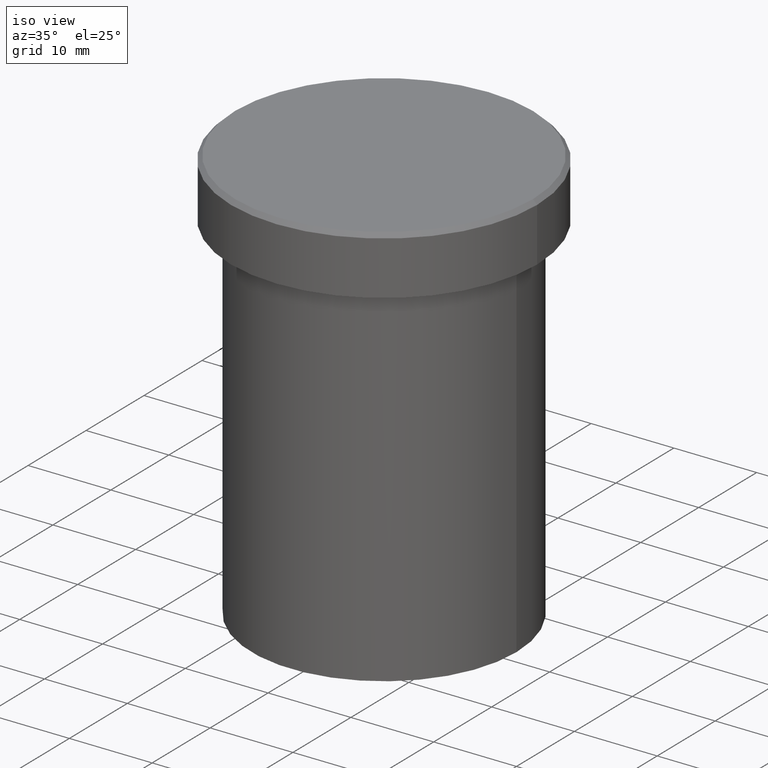
[diagram: clean part render]
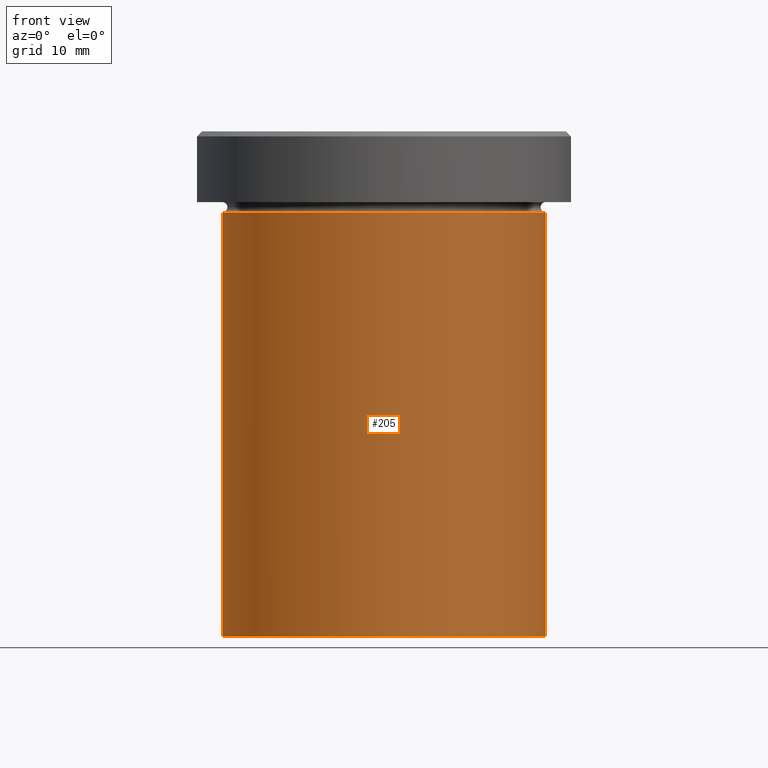
[diagram: tour spotlight — one face highlighted and labeled with its STEP entity id]
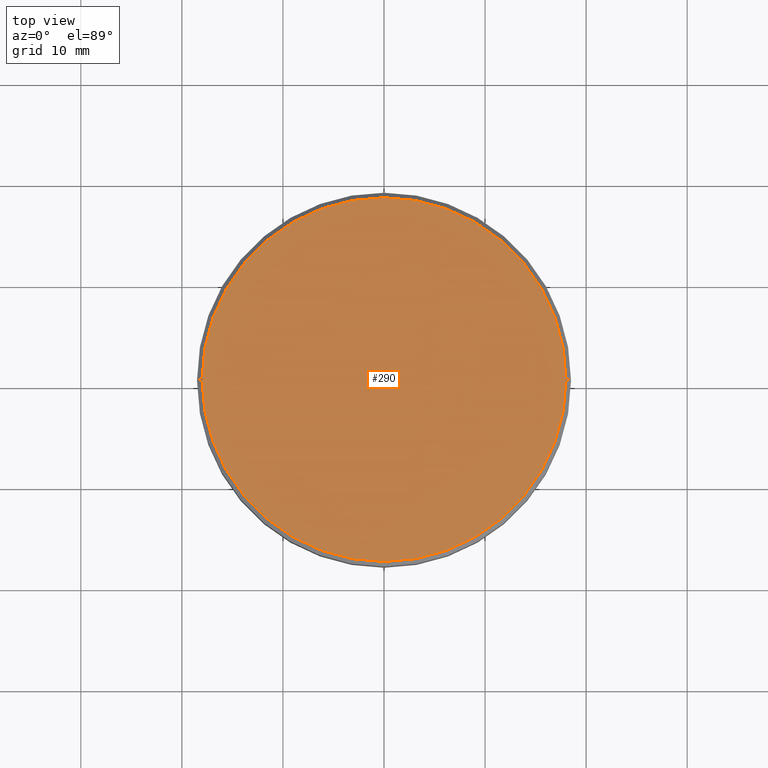
[diagram: tour spotlight — one face highlighted and labeled with its STEP entity id]
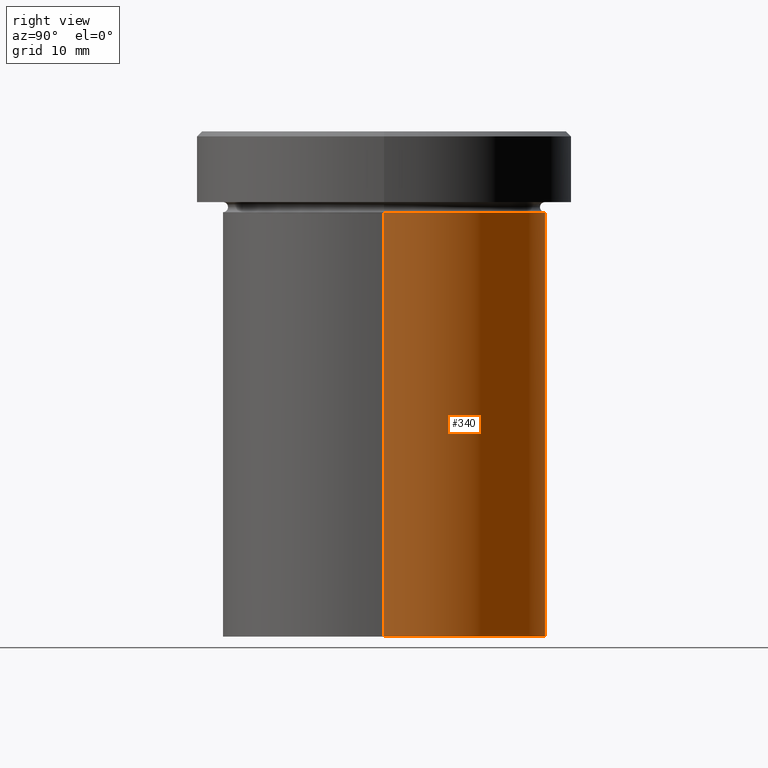
[diagram: tour spotlight — one face highlighted and labeled with its STEP entity id]
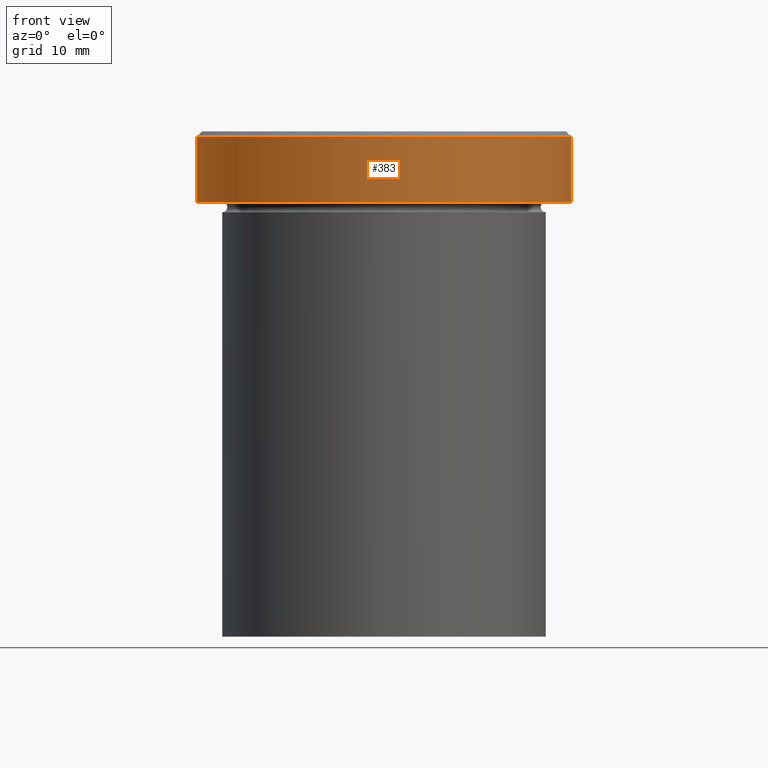
[diagram: tour spotlight — one face highlighted and labeled with its STEP entity id]
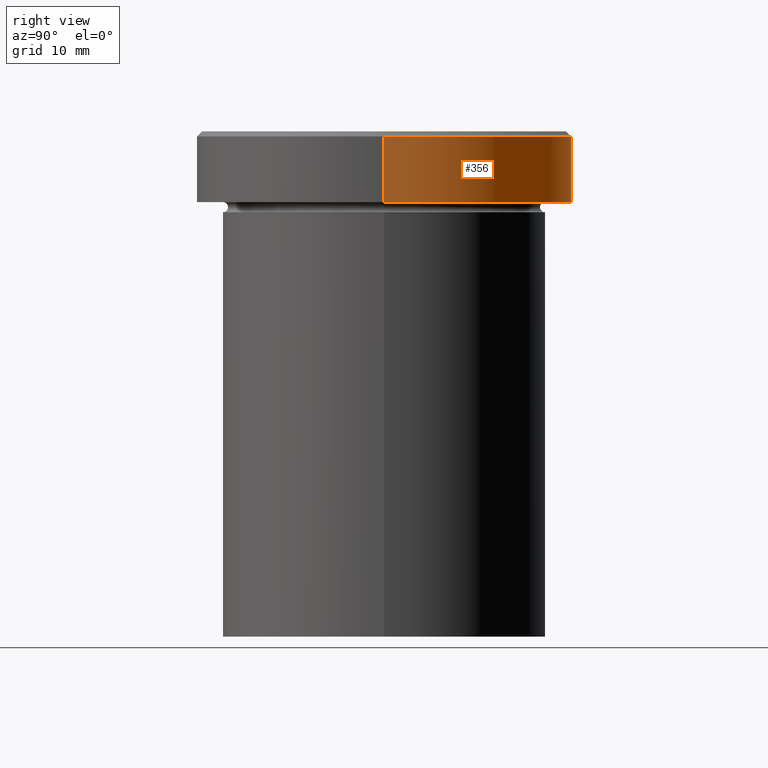
[diagram: tour spotlight — one face highlighted and labeled with its STEP entity id]
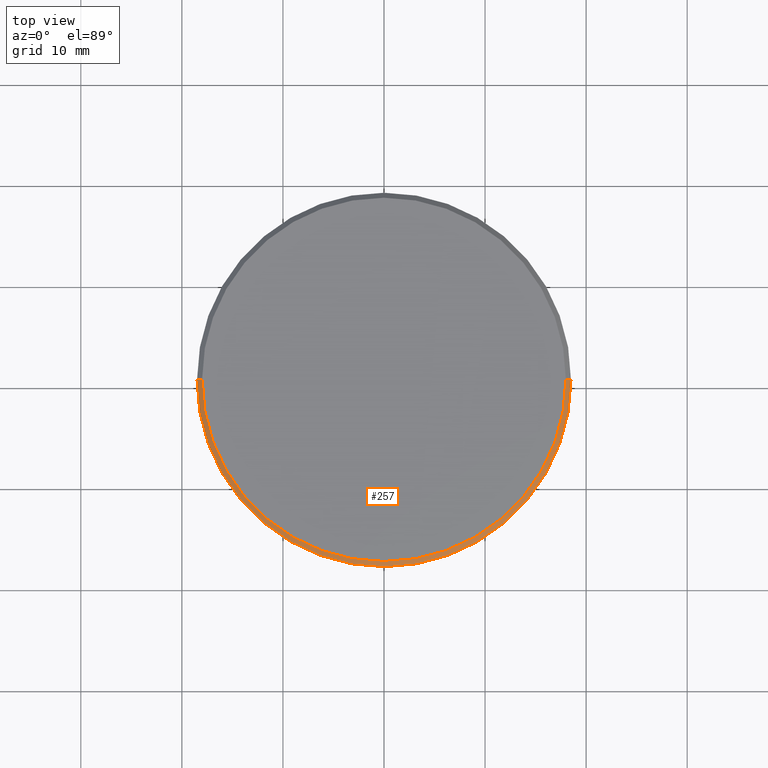
[diagram: tour spotlight — one face highlighted and labeled with its STEP entity id]
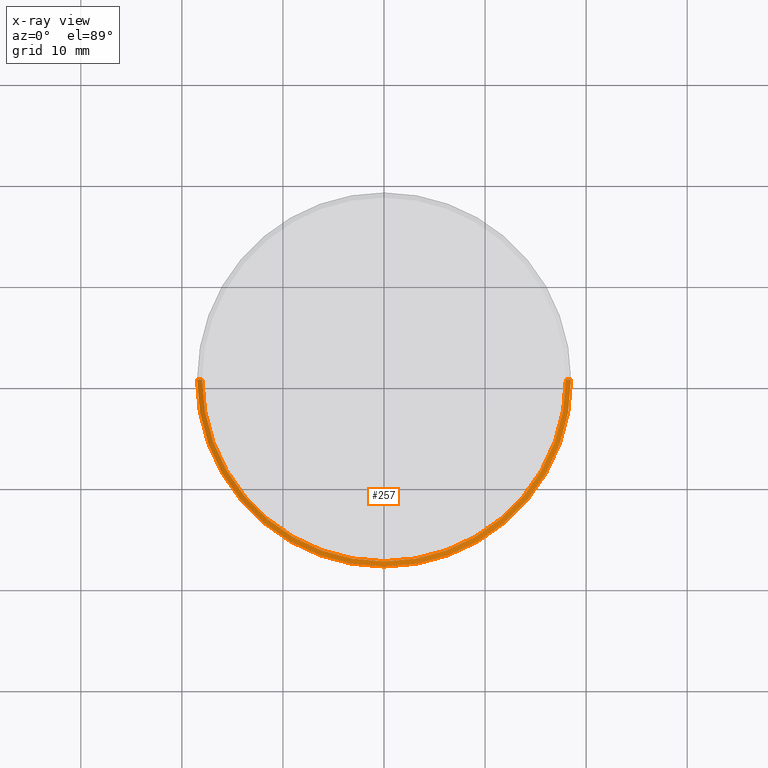
[diagram: x-ray of the same camera — body ghosted, this tour face saturated]
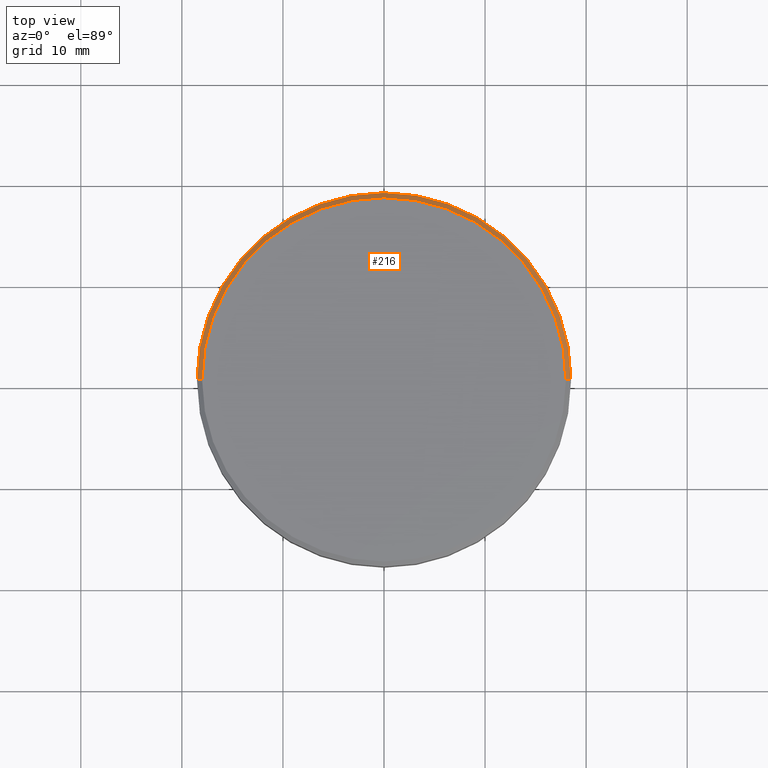
[diagram: tour spotlight — one face highlighted and labeled with its STEP entity id]
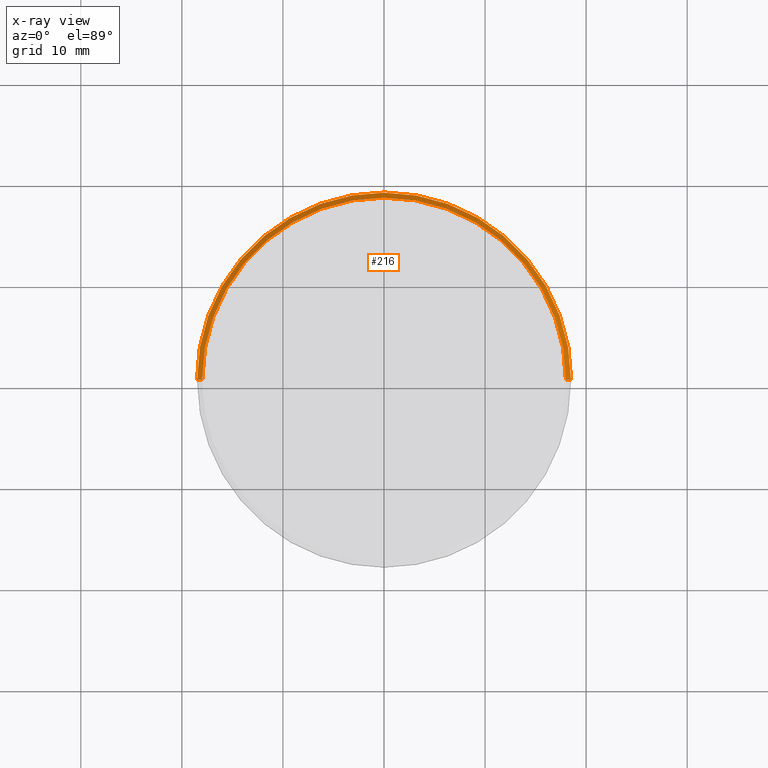
[diagram: x-ray of the same camera — body ghosted, this tour face saturated]
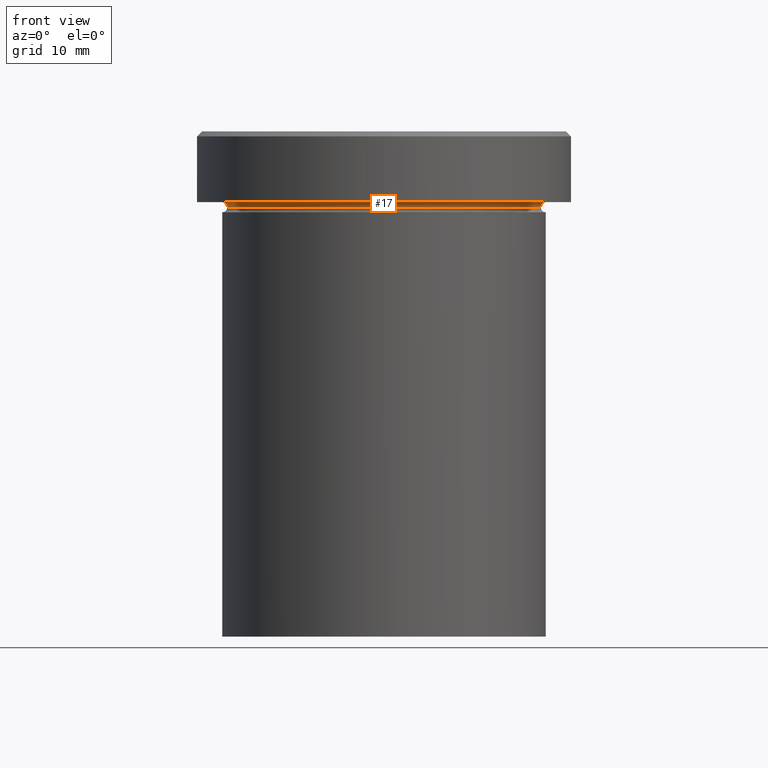
[diagram: tour spotlight — one face highlighted and labeled with its STEP entity id]
A machine part: a face-by-face anatomy tour. The part has 13 B-rep faces; the first image is the clean iso view, then the 8 largest visible faces are spotlighted one at a time (largest first), each with its STEP entity span.

Face 1 — front view, entity #205. In plain terms, the highlighted cylindrical surface (partial cylindrical patch) has radius 16 mm, axis along (-0, -0, 1).
Definition (entity closure, byte-faithful):
#37 = CARTESIAN_POINT ( 'NONE',  ( 0.000000000000000000, 0.000000000000000000, 0.000000000000000000 ) ) ;
#38 = CIRCLE ( 'NONE', #149, 16.00000000000000000 ) ;
#51 = AXIS2_PLACEMENT_3D ( 'NONE', #77, #240, #324 ) ;
#54 = EDGE_CURVE ( 'NONE', #184, #87, #388, .T. ) ;
#63 = VERTEX_POINT ( 'NONE', #136 ) ;
#77 = CARTESIAN_POINT ( 'NONE',  ( 0.000000000000000000, 0.000000000000000000, -50.00000000000000000 ) ) ;
#87 = VERTEX_POINT ( 'NONE', #254 ) ;
#97 = CARTESIAN_POINT ( 'NONE',  ( 16.00000000000000000, 0.000000000000000000, 0.000000000000000000 ) ) ;
#99 = VERTEX_POINT ( 'NONE', #350 ) ;
#115 = DIRECTION ( 'NONE',  ( 1.000000000000000000, 0.000000000000000000, 0.000000000000000000 ) ) ;
#133 = EDGE_CURVE ( 'NONE', #63, #99, #380, .T. ) ;
#136 = CARTESIAN_POINT ( 'NONE',  ( -16.00000000000000000, 1.959434878635765131E-15, -50.00000000000000000 ) ) ;
#143 = ORIENTED_EDGE ( 'NONE', *, *, #253, .T. ) ;
#146 = CARTESIAN_POINT ( 'NONE',  ( 16.00000000000000000, 0.000000000000000000, -50.00000000000000000 ) ) ;
#149 = AXIS2_PLACEMENT_3D ( 'NONE', #328, #390, #202 ) ;
#152 = ORIENTED_EDGE ( 'NONE', *, *, #133, .F. ) ;
#167 = DIRECTION ( 'NONE',  ( -0.000000000000000000, -0.000000000000000000, 1.000000000000000000 ) ) ;
#172 = EDGE_CURVE ( 'NONE', #99, #87, #38, .T. ) ;
#184 = VERTEX_POINT ( 'NONE', #146 ) ;
#202 = DIRECTION ( 'NONE',  ( 1.000000000000000000, 0.000000000000000000, 0.000000000000000000 ) ) ;
#205 = ADVANCED_FACE ( 'NONE', ( #319 ), #397, .T. ) ;
#218 = CIRCLE ( 'NONE', #51, 16.00000000000000000 ) ;
#227 = EDGE_LOOP ( 'NONE', ( #152, #143, #409, #265 ) ) ;
#240 = DIRECTION ( 'NONE',  ( -0.000000000000000000, -0.000000000000000000, 1.000000000000000000 ) ) ;
#248 = VECTOR ( 'NONE', #354, 1000.000000000000000 ) ;
#253 = EDGE_CURVE ( 'NONE', #63, #184, #218, .T. ) ;
#254 = CARTESIAN_POINT ( 'NONE',  ( 16.00000000000000000, 0.000000000000000000, -8.000000000000000000 ) ) ;
#265 = ORIENTED_EDGE ( 'NONE', *, *, #172, .F. ) ;
#269 = AXIS2_PLACEMENT_3D ( 'NONE', #37, #167, #115 ) ;
#282 = DIRECTION ( 'NONE',  ( -0.000000000000000000, -0.000000000000000000, 1.000000000000000000 ) ) ;
#285 = VECTOR ( 'NONE', #282, 1000.000000000000000 ) ;
#319 = FACE_OUTER_BOUND ( 'NONE', #227, .T. ) ;
#324 = DIRECTION ( 'NONE',  ( 1.000000000000000000, 0.000000000000000000, 0.000000000000000000 ) ) ;
#328 = CARTESIAN_POINT ( 'NONE',  ( 0.000000000000000000, 0.000000000000000000, -8.000000000000000000 ) ) ;
#349 = CARTESIAN_POINT ( 'NONE',  ( -16.00000000000000000, 1.959434878635765131E-15, 0.000000000000000000 ) ) ;
#350 = CARTESIAN_POINT ( 'NONE',  ( -16.00000000000000000, 1.959434878635765131E-15, -8.000000000000000000 ) ) ;
#354 = DIRECTION ( 'NONE',  ( -0.000000000000000000, -0.000000000000000000, 1.000000000000000000 ) ) ;
#380 = LINE ( 'NONE', #349, #285 ) ;
#388 = LINE ( 'NONE', #97, #248 ) ;
#390 = DIRECTION ( 'NONE',  ( -0.000000000000000000, -0.000000000000000000, 1.000000000000000000 ) ) ;
#397 = CYLINDRICAL_SURFACE ( 'NONE', #269, 16.00000000000000000 ) ;
#409 = ORIENTED_EDGE ( 'NONE', *, *, #54, .T. ) ;

Face 2 — top view, entity #290. In plain terms, the highlighted planar face has unit normal (0, -0, 1).
Definition (entity closure, byte-faithful):
#7 = AXIS2_PLACEMENT_3D ( 'NONE', #261, #41, #295 ) ;
#12 = FACE_OUTER_BOUND ( 'NONE', #300, .T. ) ;
#22 = CARTESIAN_POINT ( 'NONE',  ( 0.000000000000000000, 0.000000000000000000, 0.000000000000000000 ) ) ;
#31 = EDGE_CURVE ( 'NONE', #188, #191, #343, .T. ) ;
#41 = DIRECTION ( 'NONE',  ( 0.000000000000000000, -0.000000000000000000, 1.000000000000000000 ) ) ;
#42 = EDGE_CURVE ( 'NONE', #191, #188, #78, .T. ) ;
#58 = CARTESIAN_POINT ( 'NONE',  ( 0.000000000000000000, 0.000000000000000000, 0.000000000000000000 ) ) ;
#78 = CIRCLE ( 'NONE', #88, 18.00000000000000355 ) ;
#88 = AXIS2_PLACEMENT_3D ( 'NONE', #58, #154, #180 ) ;
#154 = DIRECTION ( 'NONE',  ( -0.000000000000000000, -0.000000000000000000, 1.000000000000000000 ) ) ;
#158 = ORIENTED_EDGE ( 'NONE', *, *, #42, .T. ) ;
#180 = DIRECTION ( 'NONE',  ( 1.000000000000000000, 0.000000000000000000, 0.000000000000000000 ) ) ;
#188 = VERTEX_POINT ( 'NONE', #266 ) ;
#191 = VERTEX_POINT ( 'NONE', #237 ) ;
#237 = CARTESIAN_POINT ( 'NONE',  ( 18.00000000000000355, 2.234980408443919609E-15, 0.000000000000000000 ) ) ;
#261 = CARTESIAN_POINT ( 'NONE',  ( 0.000000000000000000, 0.000000000000000000, 0.000000000000000000 ) ) ;
#266 = CARTESIAN_POINT ( 'NONE',  ( -18.00000000000000355, 0.000000000000000000, 0.000000000000000000 ) ) ;
#267 = AXIS2_PLACEMENT_3D ( 'NONE', #22, #310, #376 ) ;
#290 = ADVANCED_FACE ( 'NONE', ( #12 ), #297, .T. ) ;
#295 = DIRECTION ( 'NONE',  ( 1.000000000000000000, 0.000000000000000000, 0.000000000000000000 ) ) ;
#297 = PLANE ( 'NONE',  #7 ) ;
#300 = EDGE_LOOP ( 'NONE', ( #408, #158 ) ) ;
#310 = DIRECTION ( 'NONE',  ( -0.000000000000000000, -0.000000000000000000, 1.000000000000000000 ) ) ;
#343 = CIRCLE ( 'NONE', #267, 18.00000000000000355 ) ;
#376 = DIRECTION ( 'NONE',  ( 1.000000000000000000, 0.000000000000000000, 0.000000000000000000 ) ) ;
#408 = ORIENTED_EDGE ( 'NONE', *, *, #31, .T. ) ;

Face 3 — right view, entity #340. In plain terms, the highlighted cylindrical surface (partial cylindrical patch) has radius 16 mm, axis along (-0, -0, 1).
Definition (entity closure, byte-faithful):
#14 = CARTESIAN_POINT ( 'NONE',  ( 0.000000000000000000, 0.000000000000000000, 0.000000000000000000 ) ) ;
#48 = EDGE_CURVE ( 'NONE', #87, #99, #194, .T. ) ;
#54 = EDGE_CURVE ( 'NONE', #184, #87, #388, .T. ) ;
#63 = VERTEX_POINT ( 'NONE', #136 ) ;
#71 = CYLINDRICAL_SURFACE ( 'NONE', #110, 16.00000000000000000 ) ;
#87 = VERTEX_POINT ( 'NONE', #254 ) ;
#95 = DIRECTION ( 'NONE',  ( 1.000000000000000000, 0.000000000000000000, 0.000000000000000000 ) ) ;
#97 = CARTESIAN_POINT ( 'NONE',  ( 16.00000000000000000, 0.000000000000000000, 0.000000000000000000 ) ) ;
#99 = VERTEX_POINT ( 'NONE', #350 ) ;
#110 = AXIS2_PLACEMENT_3D ( 'NONE', #14, #142, #262 ) ;
#113 = FACE_OUTER_BOUND ( 'NONE', #268, .T. ) ;
#133 = EDGE_CURVE ( 'NONE', #63, #99, #380, .T. ) ;
#136 = CARTESIAN_POINT ( 'NONE',  ( -16.00000000000000000, 1.959434878635765131E-15, -50.00000000000000000 ) ) ;
#142 = DIRECTION ( 'NONE',  ( -0.000000000000000000, -0.000000000000000000, 1.000000000000000000 ) ) ;
#146 = CARTESIAN_POINT ( 'NONE',  ( 16.00000000000000000, 0.000000000000000000, -50.00000000000000000 ) ) ;
#173 = DIRECTION ( 'NONE',  ( -0.000000000000000000, -0.000000000000000000, 1.000000000000000000 ) ) ;
#184 = VERTEX_POINT ( 'NONE', #146 ) ;
#194 = CIRCLE ( 'NONE', #308, 16.00000000000000000 ) ;
#200 = DIRECTION ( 'NONE',  ( 1.000000000000000000, 0.000000000000000000, 0.000000000000000000 ) ) ;
#234 = AXIS2_PLACEMENT_3D ( 'NONE', #393, #173, #200 ) ;
#236 = CIRCLE ( 'NONE', #234, 16.00000000000000000 ) ;
#248 = VECTOR ( 'NONE', #354, 1000.000000000000000 ) ;
#249 = DIRECTION ( 'NONE',  ( -0.000000000000000000, -0.000000000000000000, 1.000000000000000000 ) ) ;
#254 = CARTESIAN_POINT ( 'NONE',  ( 16.00000000000000000, 0.000000000000000000, -8.000000000000000000 ) ) ;
#262 = DIRECTION ( 'NONE',  ( 1.000000000000000000, 0.000000000000000000, 0.000000000000000000 ) ) ;
#268 = EDGE_LOOP ( 'NONE', ( #369, #309, #353, #278 ) ) ;
#278 = ORIENTED_EDGE ( 'NONE', *, *, #54, .F. ) ;
#280 = EDGE_CURVE ( 'NONE', #184, #63, #236, .T. ) ;
#282 = DIRECTION ( 'NONE',  ( -0.000000000000000000, -0.000000000000000000, 1.000000000000000000 ) ) ;
#285 = VECTOR ( 'NONE', #282, 1000.000000000000000 ) ;
#288 = CARTESIAN_POINT ( 'NONE',  ( 0.000000000000000000, 0.000000000000000000, -8.000000000000000000 ) ) ;
#308 = AXIS2_PLACEMENT_3D ( 'NONE', #288, #249, #95 ) ;
#309 = ORIENTED_EDGE ( 'NONE', *, *, #133, .T. ) ;
#340 = ADVANCED_FACE ( 'NONE', ( #113 ), #71, .T. ) ;
#349 = CARTESIAN_POINT ( 'NONE',  ( -16.00000000000000000, 1.959434878635765131E-15, 0.000000000000000000 ) ) ;
#350 = CARTESIAN_POINT ( 'NONE',  ( -16.00000000000000000, 1.959434878635765131E-15, -8.000000000000000000 ) ) ;
#353 = ORIENTED_EDGE ( 'NONE', *, *, #48, .F. ) ;
#354 = DIRECTION ( 'NONE',  ( -0.000000000000000000, -0.000000000000000000, 1.000000000000000000 ) ) ;
#369 = ORIENTED_EDGE ( 'NONE', *, *, #280, .T. ) ;
#380 = LINE ( 'NONE', #349, #285 ) ;
#388 = LINE ( 'NONE', #97, #248 ) ;
#393 = CARTESIAN_POINT ( 'NONE',  ( 0.000000000000000000, 0.000000000000000000, -50.00000000000000000 ) ) ;

Face 4 — front view, entity #383. In plain terms, the highlighted cylindrical surface (partial cylindrical patch) has radius 18.5 mm, axis along (-0, -0, 1).
Definition (entity closure, byte-faithful):
#11 = EDGE_CURVE ( 'NONE', #29, #23, #303, .T. ) ;
#23 = VERTEX_POINT ( 'NONE', #56 ) ;
#29 = VERTEX_POINT ( 'NONE', #402 ) ;
#34 = ORIENTED_EDGE ( 'NONE', *, *, #145, .T. ) ;
#46 = ORIENTED_EDGE ( 'NONE', *, *, #327, .T. ) ;
#52 = AXIS2_PLACEMENT_3D ( 'NONE', #362, #171, #357 ) ;
#55 = DIRECTION ( 'NONE',  ( 1.000000000000000000, 0.000000000000000000, 0.000000000000000000 ) ) ;
#56 = CARTESIAN_POINT ( 'NONE',  ( 18.50000000000000000, 0.000000000000000000, -0.5000000000000004441 ) ) ;
#73 = VERTEX_POINT ( 'NONE', #135 ) ;
#79 = DIRECTION ( 'NONE',  ( 1.000000000000000000, 0.000000000000000000, 0.000000000000000000 ) ) ;
#81 = CYLINDRICAL_SURFACE ( 'NONE', #320, 18.50000000000000000 ) ;
#109 = DIRECTION ( 'NONE',  ( -0.000000000000000000, -0.000000000000000000, 1.000000000000000000 ) ) ;
#124 = DIRECTION ( 'NONE',  ( -0.000000000000000000, -0.000000000000000000, 1.000000000000000000 ) ) ;
#135 = CARTESIAN_POINT ( 'NONE',  ( -18.50000000000000000, 2.265596578422603396E-15, -6.999999999999998224 ) ) ;
#145 = EDGE_CURVE ( 'NONE', #23, #260, #301, .T. ) ;
#168 = VECTOR ( 'NONE', #109, 1000.000000000000000 ) ;
#171 = DIRECTION ( 'NONE',  ( -0.000000000000000000, -0.000000000000000000, 1.000000000000000000 ) ) ;
#209 = FACE_OUTER_BOUND ( 'NONE', #307, .T. ) ;
#231 = ORIENTED_EDGE ( 'NONE', *, *, #323, .F. ) ;
#232 = LINE ( 'NONE', #235, #168 ) ;
#235 = CARTESIAN_POINT ( 'NONE',  ( -18.50000000000000000, 2.265596578422603396E-15, 0.000000000000000000 ) ) ;
#238 = CARTESIAN_POINT ( 'NONE',  ( -18.50000000000000000, 2.265596578422603396E-15, -0.5000000000000004441 ) ) ;
#250 = AXIS2_PLACEMENT_3D ( 'NONE', #325, #299, #79 ) ;
#260 = VERTEX_POINT ( 'NONE', #238 ) ;
#275 = ORIENTED_EDGE ( 'NONE', *, *, #11, .T. ) ;
#276 = DIRECTION ( 'NONE',  ( -0.000000000000000000, -0.000000000000000000, 1.000000000000000000 ) ) ;
#283 = CIRCLE ( 'NONE', #52, 18.50000000000000000 ) ;
#299 = DIRECTION ( 'NONE',  ( 0.000000000000000000, 0.000000000000000000, -1.000000000000000000 ) ) ;
#301 = CIRCLE ( 'NONE', #250, 18.50000000000000000 ) ;
#303 = LINE ( 'NONE', #404, #326 ) ;
#307 = EDGE_LOOP ( 'NONE', ( #231, #46, #275, #34 ) ) ;
#320 = AXIS2_PLACEMENT_3D ( 'NONE', #375, #276, #55 ) ;
#323 = EDGE_CURVE ( 'NONE', #73, #260, #232, .T. ) ;
#325 = CARTESIAN_POINT ( 'NONE',  ( 0.000000000000000000, 0.000000000000000000, -0.5000000000000004441 ) ) ;
#326 = VECTOR ( 'NONE', #124, 1000.000000000000000 ) ;
#327 = EDGE_CURVE ( 'NONE', #73, #29, #283, .T. ) ;
#357 = DIRECTION ( 'NONE',  ( 1.000000000000000000, 0.000000000000000000, 0.000000000000000000 ) ) ;
#362 = CARTESIAN_POINT ( 'NONE',  ( 0.000000000000000000, 0.000000000000000000, -6.999999999999998224 ) ) ;
#375 = CARTESIAN_POINT ( 'NONE',  ( 0.000000000000000000, 0.000000000000000000, 0.000000000000000000 ) ) ;
#383 = ADVANCED_FACE ( 'NONE', ( #209 ), #81, .T. ) ;
#402 = CARTESIAN_POINT ( 'NONE',  ( 18.50000000000000000, 0.000000000000000000, -6.999999999999998224 ) ) ;
#404 = CARTESIAN_POINT ( 'NONE',  ( 18.50000000000000000, 0.000000000000000000, 0.000000000000000000 ) ) ;

Face 5 — right view, entity #356. In plain terms, the highlighted cylindrical surface (partial cylindrical patch) has radius 18.5 mm, axis along (-0, -0, 1).
Definition (entity closure, byte-faithful):
#11 = EDGE_CURVE ( 'NONE', #29, #23, #303, .T. ) ;
#23 = VERTEX_POINT ( 'NONE', #56 ) ;
#29 = VERTEX_POINT ( 'NONE', #402 ) ;
#56 = CARTESIAN_POINT ( 'NONE',  ( 18.50000000000000000, 0.000000000000000000, -0.5000000000000004441 ) ) ;
#57 = CARTESIAN_POINT ( 'NONE',  ( 0.000000000000000000, 0.000000000000000000, -0.5000000000000004441 ) ) ;
#60 = AXIS2_PLACEMENT_3D ( 'NONE', #57, #215, #210 ) ;
#73 = VERTEX_POINT ( 'NONE', #135 ) ;
#85 = CARTESIAN_POINT ( 'NONE',  ( 0.000000000000000000, 0.000000000000000000, 0.000000000000000000 ) ) ;
#89 = ORIENTED_EDGE ( 'NONE', *, *, #394, .T. ) ;
#93 = AXIS2_PLACEMENT_3D ( 'NONE', #197, #315, #166 ) ;
#94 = AXIS2_PLACEMENT_3D ( 'NONE', #85, #372, #120 ) ;
#108 = EDGE_CURVE ( 'NONE', #29, #73, #129, .T. ) ;
#109 = DIRECTION ( 'NONE',  ( -0.000000000000000000, -0.000000000000000000, 1.000000000000000000 ) ) ;
#120 = DIRECTION ( 'NONE',  ( 1.000000000000000000, 0.000000000000000000, 0.000000000000000000 ) ) ;
#124 = DIRECTION ( 'NONE',  ( -0.000000000000000000, -0.000000000000000000, 1.000000000000000000 ) ) ;
#129 = CIRCLE ( 'NONE', #93, 18.50000000000000000 ) ;
#135 = CARTESIAN_POINT ( 'NONE',  ( -18.50000000000000000, 2.265596578422603396E-15, -6.999999999999998224 ) ) ;
#166 = DIRECTION ( 'NONE',  ( 1.000000000000000000, 0.000000000000000000, 0.000000000000000000 ) ) ;
#168 = VECTOR ( 'NONE', #109, 1000.000000000000000 ) ;
#176 = ORIENTED_EDGE ( 'NONE', *, *, #108, .T. ) ;
#197 = CARTESIAN_POINT ( 'NONE',  ( 0.000000000000000000, 0.000000000000000000, -6.999999999999998224 ) ) ;
#199 = ORIENTED_EDGE ( 'NONE', *, *, #11, .F. ) ;
#210 = DIRECTION ( 'NONE',  ( 1.000000000000000000, 0.000000000000000000, 0.000000000000000000 ) ) ;
#215 = DIRECTION ( 'NONE',  ( 0.000000000000000000, 0.000000000000000000, -1.000000000000000000 ) ) ;
#219 = ORIENTED_EDGE ( 'NONE', *, *, #323, .T. ) ;
#232 = LINE ( 'NONE', #235, #168 ) ;
#235 = CARTESIAN_POINT ( 'NONE',  ( -18.50000000000000000, 2.265596578422603396E-15, 0.000000000000000000 ) ) ;
#238 = CARTESIAN_POINT ( 'NONE',  ( -18.50000000000000000, 2.265596578422603396E-15, -0.5000000000000004441 ) ) ;
#260 = VERTEX_POINT ( 'NONE', #238 ) ;
#293 = CIRCLE ( 'NONE', #60, 18.50000000000000000 ) ;
#303 = LINE ( 'NONE', #404, #326 ) ;
#305 = FACE_OUTER_BOUND ( 'NONE', #367, .T. ) ;
#315 = DIRECTION ( 'NONE',  ( -0.000000000000000000, -0.000000000000000000, 1.000000000000000000 ) ) ;
#323 = EDGE_CURVE ( 'NONE', #73, #260, #232, .T. ) ;
#326 = VECTOR ( 'NONE', #124, 1000.000000000000000 ) ;
#356 = ADVANCED_FACE ( 'NONE', ( #305 ), #366, .T. ) ;
#366 = CYLINDRICAL_SURFACE ( 'NONE', #94, 18.50000000000000000 ) ;
#367 = EDGE_LOOP ( 'NONE', ( #176, #219, #89, #199 ) ) ;
#372 = DIRECTION ( 'NONE',  ( -0.000000000000000000, -0.000000000000000000, 1.000000000000000000 ) ) ;
#394 = EDGE_CURVE ( 'NONE', #260, #23, #293, .T. ) ;
#402 = CARTESIAN_POINT ( 'NONE',  ( 18.50000000000000000, 0.000000000000000000, -6.999999999999998224 ) ) ;
#404 = CARTESIAN_POINT ( 'NONE',  ( 18.50000000000000000, 0.000000000000000000, 0.000000000000000000 ) ) ;

Face 6 — top view, entity #257. An x-ray twin of the same camera follows (body ghosted, this face saturated) — the face is partly hidden behind the body. In plain terms, the highlighted conical surface has half-angle 45 deg.
Definition (entity closure, byte-faithful):
#6 = LINE ( 'NONE', #222, #160 ) ;
#20 = EDGE_LOOP ( 'NONE', ( #347, #258, #84, #198 ) ) ;
#22 = CARTESIAN_POINT ( 'NONE',  ( 0.000000000000000000, 0.000000000000000000, 0.000000000000000000 ) ) ;
#23 = VERTEX_POINT ( 'NONE', #56 ) ;
#25 = AXIS2_PLACEMENT_3D ( 'NONE', #138, #69, #392 ) ;
#31 = EDGE_CURVE ( 'NONE', #188, #191, #343, .T. ) ;
#56 = CARTESIAN_POINT ( 'NONE',  ( 18.50000000000000000, 0.000000000000000000, -0.5000000000000004441 ) ) ;
#69 = DIRECTION ( 'NONE',  ( 0.000000000000000000, 0.000000000000000000, -1.000000000000000000 ) ) ;
#79 = DIRECTION ( 'NONE',  ( 1.000000000000000000, 0.000000000000000000, 0.000000000000000000 ) ) ;
#84 = ORIENTED_EDGE ( 'NONE', *, *, #91, .T. ) ;
#91 = EDGE_CURVE ( 'NONE', #188, #260, #6, .T. ) ;
#131 = LINE ( 'NONE', #144, #338 ) ;
#138 = CARTESIAN_POINT ( 'NONE',  ( 0.000000000000000000, 0.000000000000000000, 0.000000000000000000 ) ) ;
#139 = EDGE_CURVE ( 'NONE', #191, #23, #131, .T. ) ;
#140 = DIRECTION ( 'NONE',  ( 0.7071067811865451302, 8.659560562354903276E-17, -0.7071067811865500152 ) ) ;
#144 = CARTESIAN_POINT ( 'NONE',  ( 18.00000000000000355, 2.204364238465235822E-15, 0.000000000000000000 ) ) ;
#145 = EDGE_CURVE ( 'NONE', #23, #260, #301, .T. ) ;
#160 = VECTOR ( 'NONE', #226, 1000.000000000000114 ) ;
#188 = VERTEX_POINT ( 'NONE', #266 ) ;
#191 = VERTEX_POINT ( 'NONE', #237 ) ;
#198 = ORIENTED_EDGE ( 'NONE', *, *, #145, .F. ) ;
#222 = CARTESIAN_POINT ( 'NONE',  ( -18.00000000000000355, 0.000000000000000000, 0.000000000000000000 ) ) ;
#226 = DIRECTION ( 'NONE',  ( -0.7071067811865451302, 0.000000000000000000, -0.7071067811865500152 ) ) ;
#237 = CARTESIAN_POINT ( 'NONE',  ( 18.00000000000000355, 2.234980408443919609E-15, 0.000000000000000000 ) ) ;
#238 = CARTESIAN_POINT ( 'NONE',  ( -18.50000000000000000, 2.265596578422603396E-15, -0.5000000000000004441 ) ) ;
#250 = AXIS2_PLACEMENT_3D ( 'NONE', #325, #299, #79 ) ;
#257 = ADVANCED_FACE ( 'NONE', ( #298 ), #361, .T. ) ;
#258 = ORIENTED_EDGE ( 'NONE', *, *, #31, .F. ) ;
#260 = VERTEX_POINT ( 'NONE', #238 ) ;
#266 = CARTESIAN_POINT ( 'NONE',  ( -18.00000000000000355, 0.000000000000000000, 0.000000000000000000 ) ) ;
#267 = AXIS2_PLACEMENT_3D ( 'NONE', #22, #310, #376 ) ;
#298 = FACE_OUTER_BOUND ( 'NONE', #20, .T. ) ;
#299 = DIRECTION ( 'NONE',  ( 0.000000000000000000, 0.000000000000000000, -1.000000000000000000 ) ) ;
#301 = CIRCLE ( 'NONE', #250, 18.50000000000000000 ) ;
#310 = DIRECTION ( 'NONE',  ( -0.000000000000000000, -0.000000000000000000, 1.000000000000000000 ) ) ;
#325 = CARTESIAN_POINT ( 'NONE',  ( 0.000000000000000000, 0.000000000000000000, -0.5000000000000004441 ) ) ;
#338 = VECTOR ( 'NONE', #140, 1000.000000000000114 ) ;
#343 = CIRCLE ( 'NONE', #267, 18.00000000000000355 ) ;
#347 = ORIENTED_EDGE ( 'NONE', *, *, #139, .F. ) ;
#361 = CONICAL_SURFACE ( 'NONE', #25, 18.00000000000000355, 0.7853981633974447263 ) ;
#376 = DIRECTION ( 'NONE',  ( 1.000000000000000000, 0.000000000000000000, 0.000000000000000000 ) ) ;
#392 = DIRECTION ( 'NONE',  ( -1.000000000000000000, 0.000000000000000000, 0.000000000000000000 ) ) ;

Face 7 — top view, entity #216. An x-ray twin of the same camera follows (body ghosted, this face saturated) — the face is partly hidden behind the body. In plain terms, the highlighted conical surface has half-angle 45 deg.
Definition (entity closure, byte-faithful):
#6 = LINE ( 'NONE', #222, #160 ) ;
#16 = FACE_OUTER_BOUND ( 'NONE', #335, .T. ) ;
#23 = VERTEX_POINT ( 'NONE', #56 ) ;
#40 = DIRECTION ( 'NONE',  ( 0.000000000000000000, 0.000000000000000000, -1.000000000000000000 ) ) ;
#42 = EDGE_CURVE ( 'NONE', #191, #188, #78, .T. ) ;
#56 = CARTESIAN_POINT ( 'NONE',  ( 18.50000000000000000, 0.000000000000000000, -0.5000000000000004441 ) ) ;
#57 = CARTESIAN_POINT ( 'NONE',  ( 0.000000000000000000, 0.000000000000000000, -0.5000000000000004441 ) ) ;
#58 = CARTESIAN_POINT ( 'NONE',  ( 0.000000000000000000, 0.000000000000000000, 0.000000000000000000 ) ) ;
#60 = AXIS2_PLACEMENT_3D ( 'NONE', #57, #215, #210 ) ;
#78 = CIRCLE ( 'NONE', #88, 18.00000000000000355 ) ;
#88 = AXIS2_PLACEMENT_3D ( 'NONE', #58, #154, #180 ) ;
#91 = EDGE_CURVE ( 'NONE', #188, #260, #6, .T. ) ;
#104 = CONICAL_SURFACE ( 'NONE', #359, 18.00000000000000355, 0.7853981633974447263 ) ;
#119 = ORIENTED_EDGE ( 'NONE', *, *, #91, .F. ) ;
#131 = LINE ( 'NONE', #144, #338 ) ;
#139 = EDGE_CURVE ( 'NONE', #191, #23, #131, .T. ) ;
#140 = DIRECTION ( 'NONE',  ( 0.7071067811865451302, 8.659560562354903276E-17, -0.7071067811865500152 ) ) ;
#144 = CARTESIAN_POINT ( 'NONE',  ( 18.00000000000000355, 2.204364238465235822E-15, 0.000000000000000000 ) ) ;
#154 = DIRECTION ( 'NONE',  ( -0.000000000000000000, -0.000000000000000000, 1.000000000000000000 ) ) ;
#160 = VECTOR ( 'NONE', #226, 1000.000000000000114 ) ;
#169 = CARTESIAN_POINT ( 'NONE',  ( 0.000000000000000000, 0.000000000000000000, 0.000000000000000000 ) ) ;
#180 = DIRECTION ( 'NONE',  ( 1.000000000000000000, 0.000000000000000000, 0.000000000000000000 ) ) ;
#188 = VERTEX_POINT ( 'NONE', #266 ) ;
#191 = VERTEX_POINT ( 'NONE', #237 ) ;
#193 = ORIENTED_EDGE ( 'NONE', *, *, #42, .F. ) ;
#210 = DIRECTION ( 'NONE',  ( 1.000000000000000000, 0.000000000000000000, 0.000000000000000000 ) ) ;
#215 = DIRECTION ( 'NONE',  ( 0.000000000000000000, 0.000000000000000000, -1.000000000000000000 ) ) ;
#216 = ADVANCED_FACE ( 'NONE', ( #16 ), #104, .T. ) ;
#222 = CARTESIAN_POINT ( 'NONE',  ( -18.00000000000000355, 0.000000000000000000, 0.000000000000000000 ) ) ;
#226 = DIRECTION ( 'NONE',  ( -0.7071067811865451302, 0.000000000000000000, -0.7071067811865500152 ) ) ;
#237 = CARTESIAN_POINT ( 'NONE',  ( 18.00000000000000355, 2.234980408443919609E-15, 0.000000000000000000 ) ) ;
#238 = CARTESIAN_POINT ( 'NONE',  ( -18.50000000000000000, 2.265596578422603396E-15, -0.5000000000000004441 ) ) ;
#251 = ORIENTED_EDGE ( 'NONE', *, *, #394, .F. ) ;
#260 = VERTEX_POINT ( 'NONE', #238 ) ;
#266 = CARTESIAN_POINT ( 'NONE',  ( -18.00000000000000355, 0.000000000000000000, 0.000000000000000000 ) ) ;
#293 = CIRCLE ( 'NONE', #60, 18.50000000000000000 ) ;
#335 = EDGE_LOOP ( 'NONE', ( #193, #377, #251, #119 ) ) ;
#338 = VECTOR ( 'NONE', #140, 1000.000000000000114 ) ;
#359 = AXIS2_PLACEMENT_3D ( 'NONE', #169, #40, #363 ) ;
#363 = DIRECTION ( 'NONE',  ( -1.000000000000000000, 0.000000000000000000, 0.000000000000000000 ) ) ;
#377 = ORIENTED_EDGE ( 'NONE', *, *, #139, .T. ) ;
#394 = EDGE_CURVE ( 'NONE', #260, #23, #293, .T. ) ;

Face 8 — front view, entity #17. In plain terms, the highlighted toroidal blend (fillet) surface has major radius 16 mm and minor (blend) radius 0.5 mm.
Definition (entity closure, byte-faithful):
#10 = CIRCLE ( 'NONE', #334, 15.50000000000000000 ) ;
#15 = DIRECTION ( 'NONE',  ( -1.000000000000000000, -1.224646799147349509E-16, 0.000000000000000000 ) ) ;
#17 = ADVANCED_FACE ( 'NONE', ( #50 ), #141, .F. ) ;
#21 = EDGE_CURVE ( 'NONE', #47, #213, #107, .T. ) ;
#24 = CARTESIAN_POINT ( 'NONE',  ( 15.50000000000000000, 0.000000000000000000, -7.500000000000000000 ) ) ;
#26 = ORIENTED_EDGE ( 'NONE', *, *, #76, .T. ) ;
#27 = ORIENTED_EDGE ( 'NONE', *, *, #181, .T. ) ;
#43 = DIRECTION ( 'NONE',  ( -1.000000000000000000, 0.000000000000000000, 0.000000000000000000 ) ) ;
#45 = DIRECTION ( 'NONE',  ( -1.224646799147353207E-16, 1.000000000000000000, 0.000000000000000000 ) ) ;
#47 = VERTEX_POINT ( 'NONE', #406 ) ;
#50 = FACE_OUTER_BOUND ( 'NONE', #374, .T. ) ;
#53 = DIRECTION ( 'NONE',  ( 0.000000000000000000, 0.000000000000000000, -1.000000000000000000 ) ) ;
#67 = DIRECTION ( 'NONE',  ( -0.000000000000000000, -0.000000000000000000, 1.000000000000000000 ) ) ;
#76 = EDGE_CURVE ( 'NONE', #47, #368, #10, .T. ) ;
#83 = DIRECTION ( 'NONE',  ( -0.000000000000000000, -1.000000000000000000, -0.000000000000000000 ) ) ;
#107 = CIRCLE ( 'NONE', #177, 0.5000000000000004441 ) ;
#137 = CIRCLE ( 'NONE', #271, 16.00000000000000000 ) ;
#141 = TOROIDAL_SURFACE ( 'NONE', #371, 16.00000000000000000, 0.5000000000000000000 ) ;
#151 = CARTESIAN_POINT ( 'NONE',  ( 0.000000000000000000, 0.000000000000000000, -7.500000000000000000 ) ) ;
#177 = AXIS2_PLACEMENT_3D ( 'NONE', #212, #83, #333 ) ;
#181 = EDGE_CURVE ( 'NONE', #368, #247, #208, .T. ) ;
#201 = AXIS2_PLACEMENT_3D ( 'NONE', #264, #45, #15 ) ;
#204 = CARTESIAN_POINT ( 'NONE',  ( 0.000000000000000000, 0.000000000000000000, -6.999999999999999112 ) ) ;
#206 = DIRECTION ( 'NONE',  ( -0.000000000000000000, -0.000000000000000000, 1.000000000000000000 ) ) ;
#208 = CIRCLE ( 'NONE', #201, 0.5000000000000004441 ) ;
#212 = CARTESIAN_POINT ( 'NONE',  ( -16.00000000000000000, 0.000000000000000000, -7.500000000000000000 ) ) ;
#213 = VERTEX_POINT ( 'NONE', #294 ) ;
#247 = VERTEX_POINT ( 'NONE', #396 ) ;
#264 = CARTESIAN_POINT ( 'NONE',  ( 16.00000000000000000, 1.959434878635765131E-15, -7.500000000000000000 ) ) ;
#271 = AXIS2_PLACEMENT_3D ( 'NONE', #204, #206, #43 ) ;
#273 = EDGE_CURVE ( 'NONE', #213, #247, #137, .T. ) ;
#291 = CARTESIAN_POINT ( 'NONE',  ( 0.000000000000000000, 0.000000000000000000, -7.500000000000000000 ) ) ;
#294 = CARTESIAN_POINT ( 'NONE',  ( -16.00000000000000000, 0.000000000000000000, -6.999999999999999112 ) ) ;
#333 = DIRECTION ( 'NONE',  ( 0.000000000000000000, 0.000000000000000000, -1.000000000000000000 ) ) ;
#334 = AXIS2_PLACEMENT_3D ( 'NONE', #291, #67, #384 ) ;
#341 = DIRECTION ( 'NONE',  ( -1.000000000000000000, 0.000000000000000000, 0.000000000000000000 ) ) ;
#368 = VERTEX_POINT ( 'NONE', #24 ) ;
#371 = AXIS2_PLACEMENT_3D ( 'NONE', #151, #53, #341 ) ;
#373 = ORIENTED_EDGE ( 'NONE', *, *, #21, .F. ) ;
#374 = EDGE_LOOP ( 'NONE', ( #26, #27, #382, #373 ) ) ;
#382 = ORIENTED_EDGE ( 'NONE', *, *, #273, .F. ) ;
#384 = DIRECTION ( 'NONE',  ( 1.000000000000000000, 0.000000000000000000, 0.000000000000000000 ) ) ;
#396 = CARTESIAN_POINT ( 'NONE',  ( 16.00000000000000000, 1.959434878635765131E-15, -6.999999999999999112 ) ) ;
#406 = CARTESIAN_POINT ( 'NONE',  ( -15.50000000000000000, 1.928818708657081344E-15, -7.500000000000000000 ) ) ;